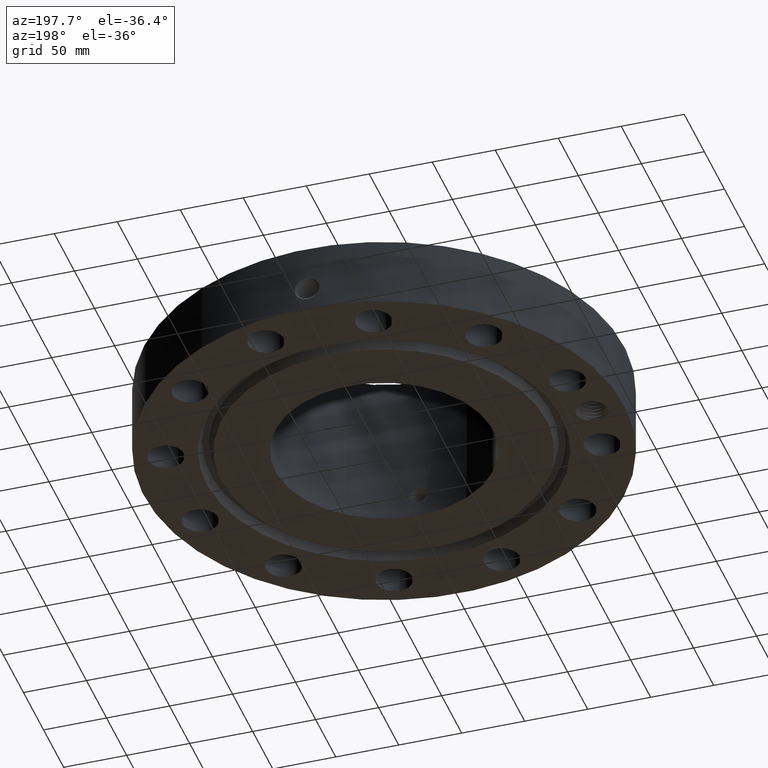
[diagram: clean part render]
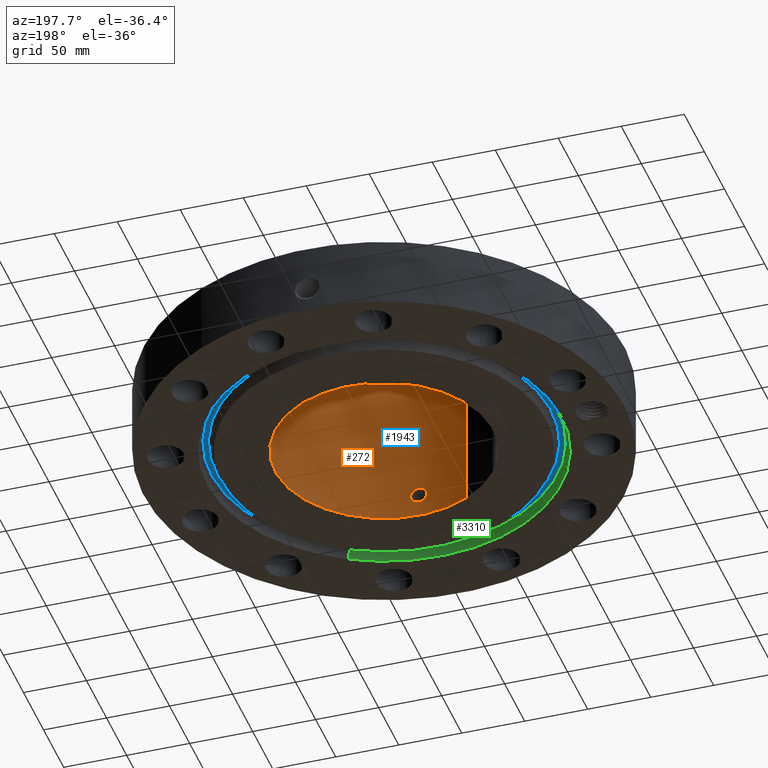
[diagram: same view with three faces highlighted in distinct colors, each labeled with its STEP entity id]
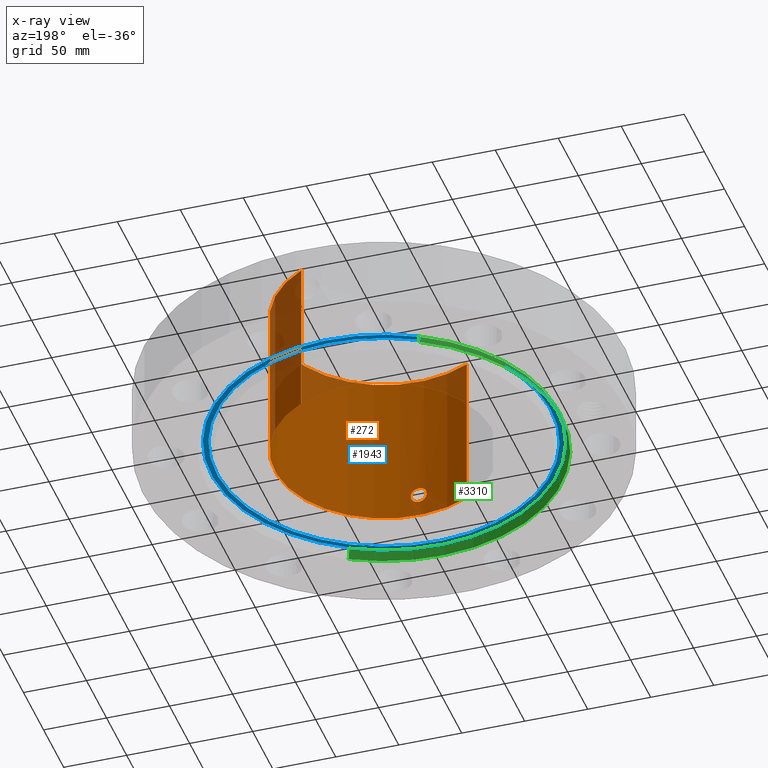
[diagram: x-ray of the same camera — body ghosted, the three highlighted faces saturated]
A machine part, auxiliary view with three faces highlighted in distinct colors.
The next image is the same camera in x-ray (body ghosted, the three faces saturated) — at least one of them is partly hidden behind the body in this view.
Their STEP definitions:

[orange] entity #272 — the highlighted cylindrical surface (partial cylindrical patch) has radius 86.5251 mm, axis along (0, 0, -1).
#232=AXIS2_PLACEMENT_3D('Cylinder Axis2P3D',#229,#230,#231) ;
#236=AXIS2_PLACEMENT_3D('Circle Axis2P3D',#234,#235,$) ;
#252=AXIS2_PLACEMENT_3D('Circle Axis2P3D',#250,#251,$) ;
#81=CARTESIAN_POINT('Control Point',(0.219395640473,-3.39942756991,0.630143615351)) ;
#82=CARTESIAN_POINT('Control Point',(0.20692209082,-3.40023260027,0.607310935864)) ;
#83=CARTESIAN_POINT('Control Point',(0.191480261735,-3.40117174872,0.586104563565)) ;
#84=CARTESIAN_POINT('Control Point',(0.173350420981,-3.40217234242,0.567035617564)) ;
#85=CARTESIAN_POINT('Control Point',(0.112173236403,-3.40506494676,0.517576729607)) ;
#86=CARTESIAN_POINT('Control Point',(0.0350453517123,-3.40694423207,0.494041426583)) ;
#87=CARTESIAN_POINT('Control Point',(-0.0194931406051,-3.40708580138,0.492387771919)) ;
#88=CARTESIAN_POINT('Control Point',(-0.124058463338,-3.40502078934,0.517495478467)) ;
#89=CARTESIAN_POINT('Control Point',(-0.203091515973,-3.40074014843,0.590328789653)) ;
#90=CARTESIAN_POINT('Control Point',(-0.232089625998,-3.39862929079,0.636499115527)) ;
#91=CARTESIAN_POINT('Control Point',(-0.25582004198,-3.39688687892,0.714672512065)) ;
#92=CARTESIAN_POINT('Control Point',(-0.248318917364,-3.39743715589,0.794104708079)) ;
#93=CARTESIAN_POINT('Control Point',(-0.2420842889,-3.39790142272,0.820725116896)) ;
#94=CARTESIAN_POINT('Control Point',(-0.232337683464,-3.39859230345,0.846166133866)) ;
#95=CARTESIAN_POINT('Control Point',(-0.219395640473,-3.39942756991,0.869856384655)) ;
#96=CARTESIAN_POINT('Vertex',(0.219395640473,-3.39942756991,0.630143615351)) ;
#98=CARTESIAN_POINT('Vertex',(-0.219395640473,-3.39942756991,0.869856384655)) ;
#206=CARTESIAN_POINT('Control Point',(-0.219395640473,-3.39942756991,0.869856384655)) ;
#207=CARTESIAN_POINT('Control Point',(-0.206922090816,-3.40023260027,0.892689064149)) ;
#208=CARTESIAN_POINT('Control Point',(-0.191480261724,-3.40117174872,0.913895436455)) ;
#209=CARTESIAN_POINT('Control Point',(-0.173350420998,-3.40217234242,0.932964382427)) ;
#210=CARTESIAN_POINT('Control Point',(-0.112173236423,-3.40506494676,0.982423270388)) ;
#211=CARTESIAN_POINT('Control Point',(-0.0350453517339,-3.40694423207,1.00595857342)) ;
#212=CARTESIAN_POINT('Control Point',(0.0194931406173,-3.40708580138,1.00761222808)) ;
#213=CARTESIAN_POINT('Control Point',(0.124058463333,-3.40502078934,0.982504521537)) ;
#214=CARTESIAN_POINT('Control Point',(0.203091515958,-3.40074014843,0.909671210368)) ;
#215=CARTESIAN_POINT('Control Point',(0.232089626001,-3.39862929079,0.863500884468)) ;
#216=CARTESIAN_POINT('Control Point',(0.255820041981,-3.39688687892,0.78532748793)) ;
#217=CARTESIAN_POINT('Control Point',(0.248318917363,-3.39743715589,0.705895291915)) ;
#218=CARTESIAN_POINT('Control Point',(0.242084288906,-3.39790142272,0.679274883126)) ;
#219=CARTESIAN_POINT('Control Point',(0.232337683468,-3.39859230345,0.653833866148)) ;
#220=CARTESIAN_POINT('Control Point',(0.219395640473,-3.39942756991,0.630143615351)) ;
#229=CARTESIAN_POINT('Axis2P3D Location',(0.,0.,2.46600000001)) ;
#234=CARTESIAN_POINT('Axis2P3D Location',(0.,0.,4.93200000002)) ;
#238=CARTESIAN_POINT('Vertex',(1.63316309726,2.98948499709,4.93200000002)) ;
#240=CARTESIAN_POINT('Vertex',(-1.63316309726,-2.98948499709,4.93200000002)) ;
#243=CARTESIAN_POINT('Line Origine',(1.63316309726,2.98948499709,2.46600000001)) ;
#247=CARTESIAN_POINT('Vertex',(1.63316309726,2.98948499709,-1.28680967894E-014)) ;
#250=CARTESIAN_POINT('Axis2P3D Location',(0.,0.,-1.28680967894E-014)) ;
#254=CARTESIAN_POINT('Vertex',(-1.63316309726,-2.98948499709,-1.28680967894E-014)) ;
#257=CARTESIAN_POINT('Line Origine',(-1.63316309726,-2.98948499709,2.46600000001)) ;
#230=DIRECTION('Axis2P3D Direction',(0.,0.,-0.0393700787402)) ;
#231=DIRECTION('Axis2P3D XDirection',(-0.0188750212049,-0.0345504945626,0.)) ;
#235=DIRECTION('Axis2P3D Direction',(0.,0.,-0.0393700787402)) ;
#244=DIRECTION('Vector Direction',(0.,0.,-0.0393700787402)) ;
#251=DIRECTION('Axis2P3D Direction',(0.,0.,-0.0393700787402)) ;
#258=DIRECTION('Vector Direction',(0.,0.,-0.0393700787402)) ;
#245=VECTOR('Line Direction',#244,0.0393700787402) ;
#259=VECTOR('Line Direction',#258,0.0393700787402) ;
#263=ORIENTED_EDGE('',*,*,#242,.F.) ;
#264=ORIENTED_EDGE('',*,*,#249,.T.) ;
#265=ORIENTED_EDGE('',*,*,#256,.T.) ;
#266=ORIENTED_EDGE('',*,*,#261,.F.) ;
#269=ORIENTED_EDGE('',*,*,#100,.F.) ;
#270=ORIENTED_EDGE('',*,*,#221,.F.) ;
#271=FACE_BOUND('',#268,.T.) ;
#272=ADVANCED_FACE('PartBody',(#267,#271),#233,.F.) ;
#80=B_SPLINE_CURVE_WITH_KNOTS('',5,(#81,#82,#83,#84,#85,#86,#87,#88,#89,#90,#91,#92,#93,#94,#95),.UNSPECIFIED.,.F.,.U.,(6,3,3,3,6),(0.,4.67514847884,14.0207936739,23.3707117934,28.2214539063),.UNSPECIFIED.) ;
#205=B_SPLINE_CURVE_WITH_KNOTS('',5,(#206,#207,#208,#209,#210,#211,#212,#213,#214,#215,#216,#217,#218,#219,#220),.UNSPECIFIED.,.F.,.U.,(6,3,3,3,6),(0.,4.67514848044,14.020793674,23.3707117921,28.2214539065),.UNSPECIFIED.) ;
#237=CIRCLE('generated circle',#236,3.40650000001) ;
#253=CIRCLE('generated circle',#252,3.40650000001) ;
#233=CYLINDRICAL_SURFACE('generated cylinder',#232,3.40650000001) ;
#100=EDGE_CURVE('',#97,#99,#80,.T.) ;
#221=EDGE_CURVE('',#99,#97,#205,.T.) ;
#242=EDGE_CURVE('',#239,#241,#237,.T.) ;
#249=EDGE_CURVE('',#239,#248,#246,.T.) ;
#256=EDGE_CURVE('',#248,#255,#253,.T.) ;
#261=EDGE_CURVE('',#241,#255,#260,.T.) ;
#262=EDGE_LOOP('',(#263,#264,#265,#266)) ;
#268=EDGE_LOOP('',(#269,#270)) ;
#267=FACE_OUTER_BOUND('',#262,.T.) ;
#246=LINE('Line',#243,#245) ;
#260=LINE('Line',#257,#259) ;
#97=VERTEX_POINT('',#96) ;
#99=VERTEX_POINT('',#98) ;
#239=VERTEX_POINT('',#238) ;
#241=VERTEX_POINT('',#240) ;
#248=VERTEX_POINT('',#247) ;
#255=VERTEX_POINT('',#254) ;

[blue] entity #1943 — the highlighted planar face has unit normal (0, 0, 1).
#1407=AXIS2_PLACEMENT_3D('Circle Axis2P3D',#1405,#1406,$) ;
#1433=AXIS2_PLACEMENT_3D('Circle Axis2P3D',#1431,#1432,$) ;
#1919=AXIS2_PLACEMENT_3D('Plane Axis2P3D',#1916,#1917,#1918) ;
#1923=AXIS2_PLACEMENT_3D('Circle Axis2P3D',#1921,#1922,$) ;
#1932=AXIS2_PLACEMENT_3D('Circle Axis2P3D',#1930,#1931,$) ;
#1405=CARTESIAN_POINT('Axis2P3D Location',(0.,0.,0.312000000001)) ;
#1409=CARTESIAN_POINT('Vertex',(2.50753589932,-4.59001367545,0.312000000001)) ;
#1411=CARTESIAN_POINT('Vertex',(-2.50753589932,4.59001367545,0.312000000001)) ;
#1431=CARTESIAN_POINT('Axis2P3D Location',(0.,0.,0.312000000001)) ;
#1916=CARTESIAN_POINT('Axis2P3D Location',(0.,5.23029270951,0.312000000001)) ;
#1921=CARTESIAN_POINT('Axis2P3D Location',(0.,0.,0.312000000001)) ;
#1925=CARTESIAN_POINT('Vertex',(-2.58636044837,4.73430104467,0.312000000001)) ;
#1927=CARTESIAN_POINT('Vertex',(2.58636044837,-4.73430104467,0.312000000001)) ;
#1930=CARTESIAN_POINT('Axis2P3D Location',(0.,0.,0.312000000001)) ;
#1406=DIRECTION('Axis2P3D Direction',(0.,0.,0.0393700787402)) ;
#1432=DIRECTION('Axis2P3D Direction',(0.,0.,0.0393700787402)) ;
#1917=DIRECTION('Axis2P3D Direction',(0.,0.,0.0393700787402)) ;
#1918=DIRECTION('Axis2P3D XDirection',(0.0393700787402,0.,0.)) ;
#1922=DIRECTION('Axis2P3D Direction',(0.,0.,0.0393700787402)) ;
#1931=DIRECTION('Axis2P3D Direction',(0.,0.,0.0393700787402)) ;
#1936=ORIENTED_EDGE('',*,*,#1929,.F.) ;
#1937=ORIENTED_EDGE('',*,*,#1934,.F.) ;
#1940=ORIENTED_EDGE('',*,*,#1413,.T.) ;
#1941=ORIENTED_EDGE('',*,*,#1435,.T.) ;
#1942=FACE_BOUND('',#1939,.T.) ;
#1943=ADVANCED_FACE('PartBody',(#1938,#1942),#1920,.F.) ;
#1408=CIRCLE('generated circle',#1407,5.23029270951) ;
#1434=CIRCLE('generated circle',#1433,5.23029270951) ;
#1924=CIRCLE('generated circle',#1923,5.39470729053) ;
#1933=CIRCLE('generated circle',#1932,5.39470729053) ;
#1413=EDGE_CURVE('',#1410,#1412,#1408,.T.) ;
#1435=EDGE_CURVE('',#1412,#1410,#1434,.T.) ;
#1929=EDGE_CURVE('',#1926,#1928,#1924,.T.) ;
#1934=EDGE_CURVE('',#1928,#1926,#1933,.T.) ;
#1935=EDGE_LOOP('',(#1936,#1937)) ;
#1939=EDGE_LOOP('',(#1940,#1941)) ;
#1938=FACE_OUTER_BOUND('',#1935,.T.) ;
#1920=PLANE('',#1919) ;
#1410=VERTEX_POINT('',#1409) ;
#1412=VERTEX_POINT('',#1411) ;
#1926=VERTEX_POINT('',#1925) ;
#1928=VERTEX_POINT('',#1927) ;

[green] entity #3310 — the highlighted conical surface has half-angle 23 deg.
#2635=AXIS2_PLACEMENT_3D('Circle Axis2P3D',#2633,#2634,$) ;
#3271=AXIS2_PLACEMENT_3D('Cone Axis2P3D',#3268,#3269,#3270) ;
#3301=AXIS2_PLACEMENT_3D('Circle Axis2P3D',#3299,#3300,$) ;
#2611=CARTESIAN_POINT('Vertex',(2.59959985443,-4.7585356149,0.293721933856)) ;
#2613=CARTESIAN_POINT('Vertex',(-2.59959985443,4.7585356149,0.293721933856)) ;
#2633=CARTESIAN_POINT('Axis2P3D Location',(0.,0.,0.293721933856)) ;
#3268=CARTESIAN_POINT('Axis2P3D Location',(0.,0.,0.293721933856)) ;
#3277=CARTESIAN_POINT('Vertex',(-2.65937346265,4.86795047083,-3.49676543189E-017)) ;
#3279=CARTESIAN_POINT('Vertex',(2.65937346265,-4.86795047083,-3.49676543189E-017)) ;
#3282=CARTESIAN_POINT('Line Origine',(2.62948665854,-4.81324304286,0.146860966928)) ;
#3287=CARTESIAN_POINT('Line Origine',(-2.62948665854,4.81324304286,0.146860966928)) ;
#3299=CARTESIAN_POINT('Axis2P3D Location',(0.,0.,-3.49676543189E-017)) ;
#2634=DIRECTION('Axis2P3D Direction',(0.,0.,0.0393700787402)) ;
#3269=DIRECTION('Axis2P3D Direction',(-0.,-0.,-0.0393700787402)) ;
#3270=DIRECTION('Axis2P3D XDirection',(0.0188750212049,-0.0345504945626,0.)) ;
#3283=DIRECTION('Vector Direction',(0.00737505833565,-0.0134999537303,-0.0362403485611)) ;
#3288=DIRECTION('Vector Direction',(-0.00737505833565,0.0134999537303,-0.0362403485611)) ;
#3300=DIRECTION('Axis2P3D Direction',(0.,0.,-0.0393700787402)) ;
#3284=VECTOR('Line Direction',#3283,0.0393700787402) ;
#3289=VECTOR('Line Direction',#3288,0.0393700787402) ;
#3305=ORIENTED_EDGE('',*,*,#3303,.T.) ;
#3306=ORIENTED_EDGE('',*,*,#3291,.T.) ;
#3307=ORIENTED_EDGE('',*,*,#2637,.T.) ;
#3308=ORIENTED_EDGE('',*,*,#3286,.F.) ;
#3310=ADVANCED_FACE('PartBody',(#3309),#3272,.F.) ;
#2636=CIRCLE('generated circle',#2635,5.42232243613) ;
#3302=CIRCLE('generated circle',#3301,5.54700000002) ;
#3272=CONICAL_SURFACE('Cone',#3271,5.42232243613,0.401425727959) ;
#2637=EDGE_CURVE('',#2614,#2612,#2636,.T.) ;
#3286=EDGE_CURVE('',#3280,#2612,#3285,.F.) ;
#3291=EDGE_CURVE('',#3278,#2614,#3290,.F.) ;
#3303=EDGE_CURVE('',#3280,#3278,#3302,.T.) ;
#3304=EDGE_LOOP('',(#3305,#3306,#3307,#3308)) ;
#3309=FACE_OUTER_BOUND('',#3304,.T.) ;
#3285=LINE('Line',#3282,#3284) ;
#3290=LINE('Line',#3287,#3289) ;
#2612=VERTEX_POINT('',#2611) ;
#2614=VERTEX_POINT('',#2613) ;
#3278=VERTEX_POINT('',#3277) ;
#3280=VERTEX_POINT('',#3279) ;